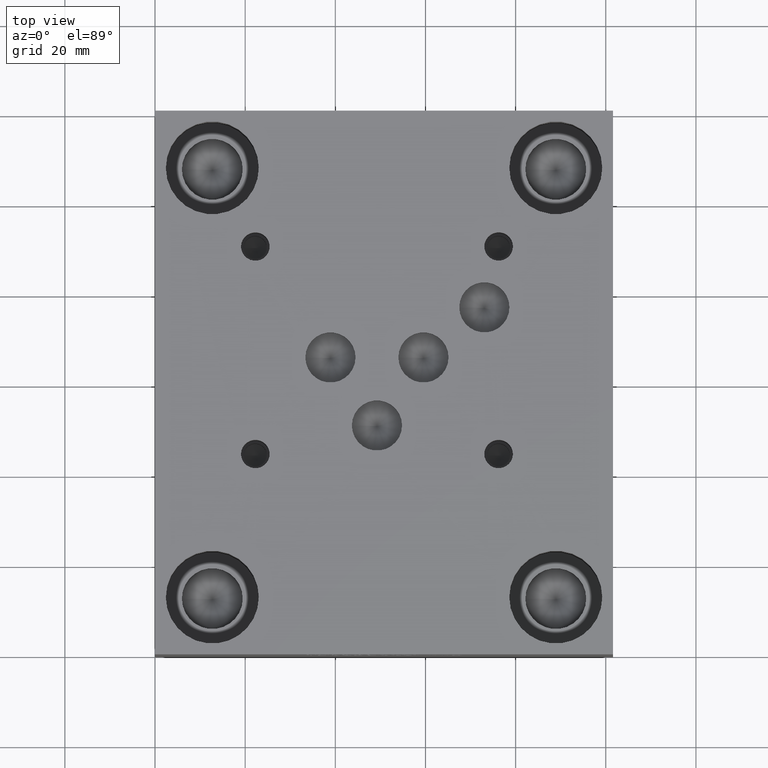
[diagram: clean part render]
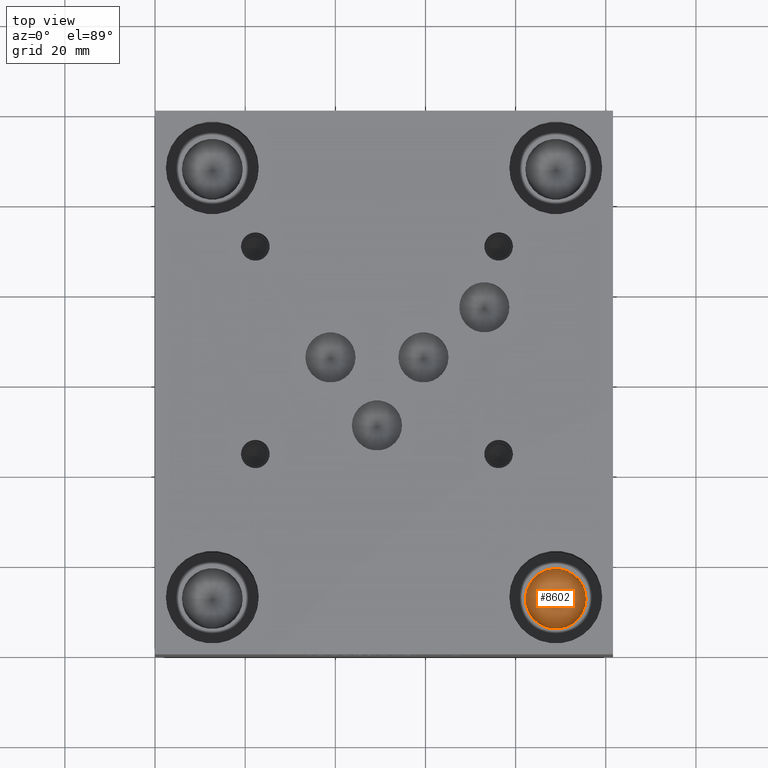
[diagram: same view with one face highlighted and labeled with its STEP entity id]
A machine part, top view. The second image highlights one B-rep face of the part: STEP entity #8602.
In plain terms, the highlighted conical surface has half-angle 60 deg.
Its self-contained STEP definition (entity closure, byte-faithful):
#24=CONICAL_SURFACE('',#8992,3.37185,1.0471975511966);
#92=CIRCLE('',#8993,6.7437);
#93=CIRCLE('',#8994,6.7437);
#1012=FACE_OUTER_BOUND('',#1491,.T.);
#1491=EDGE_LOOP('',(#7367,#7368,#7369,#7370));
#2348=LINE('',#14600,#3175);
#3175=VECTOR('',#10563,3.37185);
#3951=VERTEX_POINT('',#14596);
#3952=VERTEX_POINT('',#14597);
#3953=VERTEX_POINT('',#14599);
#5116=EDGE_CURVE('',#3951,#3952,#92,.T.);
#5117=EDGE_CURVE('',#3952,#3953,#2348,.T.);
#5118=EDGE_CURVE('',#3952,#3951,#93,.T.);
#7367=ORIENTED_EDGE('',*,*,#5116,.T.);
#7368=ORIENTED_EDGE('',*,*,#5117,.T.);
#7369=ORIENTED_EDGE('',*,*,#5117,.F.);
#7370=ORIENTED_EDGE('',*,*,#5118,.T.);
#8602=ADVANCED_FACE('',(#1012),#24,.F.);
#8992=AXIS2_PLACEMENT_3D('',#14595,#10559,#10560);
#8993=AXIS2_PLACEMENT_3D('',#14598,#10561,#10562);
#8994=AXIS2_PLACEMENT_3D('',#14601,#10564,#10565);
#10559=DIRECTION('center_axis',(0.,0.,1.));
#10560=DIRECTION('ref_axis',(1.,0.,0.));
#10561=DIRECTION('center_axis',(0.,0.,1.));
#10562=DIRECTION('ref_axis',(1.,0.,0.));
#10563=DIRECTION('',(0.866025403784439,1.06057523872491E-16,-0.5));
#10564=DIRECTION('center_axis',(0.,0.,1.));
#10565=DIRECTION('ref_axis',(1.,0.,0.));
#14595=CARTESIAN_POINT('Origin',(88.9,12.7,13.209781494833));
#14596=CARTESIAN_POINT('',(95.6437,12.7,15.15652));
#14597=CARTESIAN_POINT('',(82.1563,12.7,15.15652));
#14598=CARTESIAN_POINT('Origin',(88.9,12.7,15.15652));
#14599=CARTESIAN_POINT('',(88.9,12.7,11.2630429896659));
#14600=CARTESIAN_POINT('',(85.52815,12.7,13.209781494833));
#14601=CARTESIAN_POINT('Origin',(88.9,12.7,15.15652));